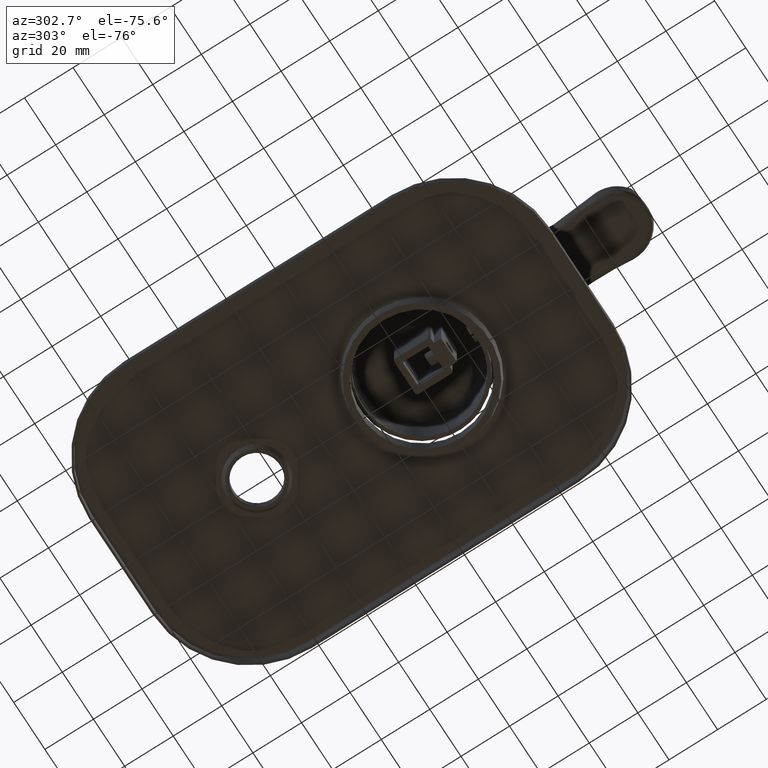
[diagram: clean part render]
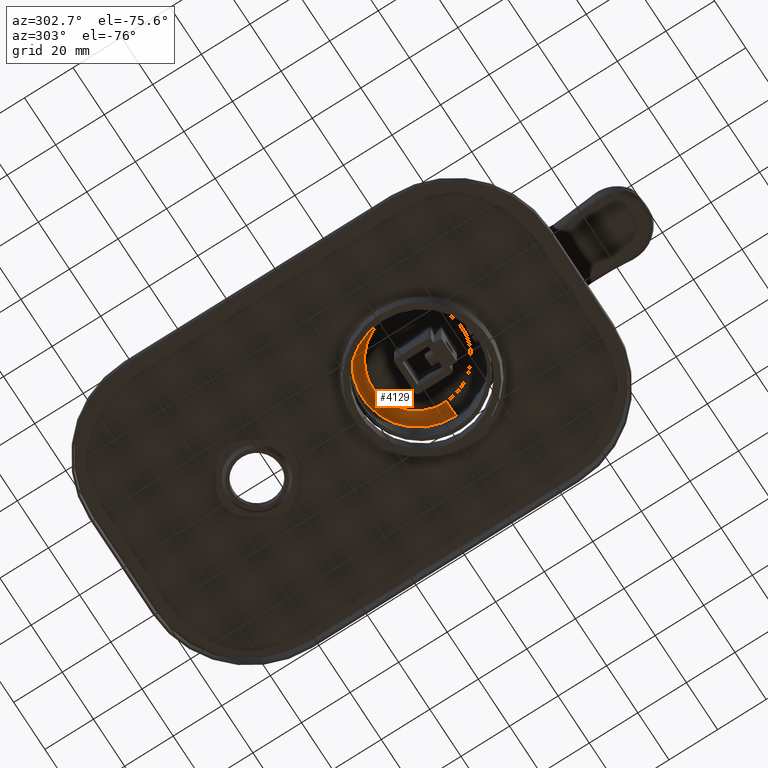
[diagram: same view with one face highlighted and labeled with its STEP entity id]
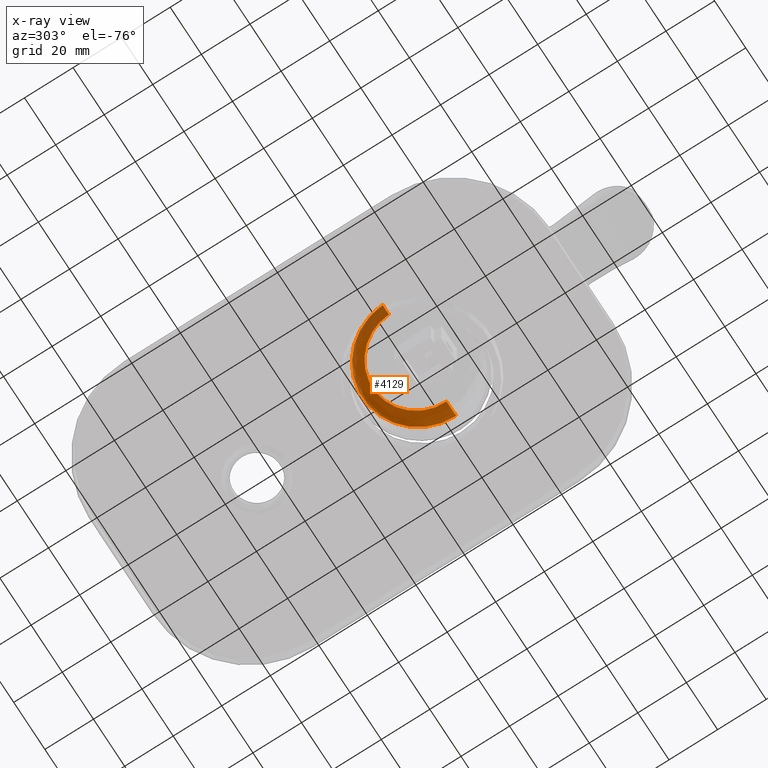
[diagram: x-ray of the same camera — body ghosted, the highlighted face saturated]
A machine part, auxiliary view. The second image highlights one B-rep face of the part: STEP entity #4129.
The next image is the same camera in x-ray: the body ghosted, the highlighted face saturated — about 17% of this face is hidden behind the body in this view.
In plain terms, the highlighted face is a freeform B-spline surface patch.
Its self-contained STEP definition (entity closure, byte-faithful):
#129=CARTESIAN_POINT('',(1.85E1,7.821723252001E-1,2.327340145320E1));
#130=CARTESIAN_POINT('',(1.849998512842E1,1.054533901998E0,2.323026361730E1));
#131=CARTESIAN_POINT('',(1.848790921633E1,1.599405743102E0,2.314396439570E1));
#132=CARTESIAN_POINT('',(1.843353099712E1,2.418149201994E0,2.301428817119E1));
#133=CARTESIAN_POINT('',(1.834275237717E1,3.235359439744E0,2.288485478506E1));
#134=CARTESIAN_POINT('',(1.821550195504E1,4.049064174167E0,2.275597661611E1));
#135=CARTESIAN_POINT('',(1.805191651269E1,4.857074348034E0,2.262800037695E1));
#136=CARTESIAN_POINT('',(1.785241446516E1,5.657396277367E0,2.250124183609E1));
#137=CARTESIAN_POINT('',(1.761746562498E1,6.448032680551E0,2.237601733187E1));
#138=CARTESIAN_POINT('',(1.734762927784E1,7.226956468687E0,2.225264792363E1));
#139=CARTESIAN_POINT('',(1.704360947781E1,7.992529009522E0,2.213139314522E1));
#140=CARTESIAN_POINT('',(1.670607691470E1,8.743417292559E0,2.201246412477E1));
#141=CARTESIAN_POINT('',(1.633569215133E1,9.478218617062E0,2.189608302824E1));
#142=CARTESIAN_POINT('',(1.593307615790E1,1.019555976967E1,2.178246735126E1));
#143=CARTESIAN_POINT('',(1.549916995919E1,1.089402164983E1,2.167184185728E1));
#144=CARTESIAN_POINT('',(1.503496643369E1,1.157217764827E1,2.156443249902E1));
#145=CARTESIAN_POINT('',(1.454145279249E1,1.222861819977E1,2.146046252966E1));
#146=CARTESIAN_POINT('',(1.401966544872E1,1.286198786132E1,2.136014663030E1));
#147=CARTESIAN_POINT('',(1.347075764482E1,1.347118262866E1,2.126365965802E1));
#148=CARTESIAN_POINT('',(1.289585864962E1,1.405508741178E1,2.117117822575E1));
#149=CARTESIAN_POINT('',(1.229606816042E1,1.461257849783E1,2.108288031210E1));
#150=CARTESIAN_POINT('',(1.167257773837E1,1.514262030454E1,2.099892993719E1));
#151=CARTESIAN_POINT('',(1.102672153202E1,1.564429692138E1,2.091947216701E1));
#152=CARTESIAN_POINT('',(1.035980001310E1,1.611668353033E1,2.084465347833E1));
#153=CARTESIAN_POINT('',(9.673093661881E0,1.655883477762E1,2.077462360049E1));
#154=CARTESIAN_POINT('',(8.967980594313E0,1.696999231489E1,2.070950264407E1));
#155=CARTESIAN_POINT('',(8.245878381266E0,1.734948887664E1,2.064939629353E1));
#156=CARTESIAN_POINT('',(7.508181297851E0,1.769663651475E1,2.059441350916E1));
#157=CARTESIAN_POINT('',(6.756266710256E0,1.801073149247E1,2.054466575190E1));
#158=CARTESIAN_POINT('',(5.991613116509E0,1.829130704056E1,2.050022695075E1));
#159=CARTESIAN_POINT('',(5.215700789126E0,1.853791817541E1,2.046116758418E1));
#160=CARTESIAN_POINT('',(4.429994305252E0,1.875009627639E1,2.042756187441E1));
#161=CARTESIAN_POINT('',(3.635957465684E0,1.892739597070E1,2.039948036155E1));
#162=CARTESIAN_POINT('',(2.835112217980E0,1.906962235623E1,2.037695391508E1));
#163=CARTESIAN_POINT('',(2.028968799553E0,1.917655458404E1,2.036001751403E1));
#164=CARTESIAN_POINT('',(1.219030792007E0,1.924793776679E1,2.034871152858E1));
#165=CARTESIAN_POINT('',(4.068065674311E-1,1.928361215151E1,2.034306126112E1));
#166=CARTESIAN_POINT('',(-4.061783835804E-1,1.928362350087E1,2.034305946356E1));
#167=CARTESIAN_POINT('',(-1.218403858631E0,1.924797517771E1,2.034870560327E1));
#168=CARTESIAN_POINT('',(-2.028345086326E0,1.917662825388E1,2.036000584587E1));
#169=CARTESIAN_POINT('',(-2.834491551519E0,1.906971991643E1,2.037693846306E1));
#170=CARTESIAN_POINT('',(-3.635340592494E0,1.892751594317E1,2.039946135978E1));
#171=CARTESIAN_POINT('',(-4.429383797310E0,1.875024466866E1,2.042753837138E1));
#172=CARTESIAN_POINT('',(-5.215098994556E0,1.853809993055E1,2.046113879699E1));
#173=CARTESIAN_POINT('',(-5.991017837568E0,1.829151101088E1,2.050019464503E1));
#174=CARTESIAN_POINT('',(-6.755678849655E0,1.801095716282E1,2.054463000923E1));
#175=CARTESIAN_POINT('',(-7.507606389051E0,1.769689261117E1,2.059437294747E1));
#176=CARTESIAN_POINT('',(-8.245316660417E0,1.734977285857E1,2.064935131521E1));
#177=CARTESIAN_POINT('',(-8.967429481524E0,1.697029673425E1,2.070945442878E1));
#178=CARTESIAN_POINT('',(-9.672554244868E0,1.655915982676E1,2.077457211777E1));
#179=CARTESIAN_POINT('',(-1.035927987252E1,1.611703863421E1,2.084459723540E1));
#180=CARTESIAN_POINT('',(-1.102621635973E1,1.564467515448E1,2.091941226077E1));
#181=CARTESIAN_POINT('',(-1.167208574564E1,1.514301776413E1,2.099886698578E1));
#182=CARTESIAN_POINT('',(-1.229559204469E1,1.461299619368E1,2.108281415557E1));
#183=CARTESIAN_POINT('',(-1.289540750066E1,1.405553189359E1,2.117110782674E1));
#184=CARTESIAN_POINT('',(-1.347032460678E1,1.347164483331E1,2.126358645200E1));
#185=CARTESIAN_POINT('',(-1.401925031274E1,1.286246510123E1,2.136007104292E1));
#186=CARTESIAN_POINT('',(-1.454106081485E1,1.222911179014E1,2.146038435263E1));
#187=CARTESIAN_POINT('',(-1.503460436815E1,1.157268942701E1,2.156435144123E1));
#188=CARTESIAN_POINT('',(-1.549882845328E1,1.089454577045E1,2.167175884473E1));
#189=CARTESIAN_POINT('',(-1.593275328086E1,1.019609856013E1,2.178238201523E1));
#190=CARTESIAN_POINT('',(-1.633539316584E1,9.478781593941E0,2.189599386146E1));
#191=CARTESIAN_POINT('',(-1.670579939021E1,8.744009878532E0,2.201237026837E1));
#192=CARTESIAN_POINT('',(-1.704335082544E1,7.993139412461E0,2.213129646689E1));
#193=CARTESIAN_POINT('',(-1.734739827487E1,7.227564679857E0,2.225255159244E1));
#194=CARTESIAN_POINT('',(-1.761728335979E1,6.448604447792E0,2.237592677284E1));
#195=CARTESIAN_POINT('',(-1.785228146608E1,5.657892963310E0,2.250116316876E1));
#196=CARTESIAN_POINT('',(-1.805182662857E1,4.857473719069E0,2.262793712279E1));
#197=CARTESIAN_POINT('',(-1.821544958887E1,4.049357495437E0,2.275593015858E1));
#198=CARTESIAN_POINT('',(-1.834273605042E1,3.235554063189E0,2.288482395974E1));
#199=CARTESIAN_POINT('',(-1.843352651610E1,2.418249746301E0,2.301427224654E1));
#200=CARTESIAN_POINT('',(-1.848790159546E1,1.599433134664E0,2.314396005731E1));
#201=CARTESIAN_POINT('',(-1.849998309254E1,1.054539284109E0,2.323026276485E1));
#202=CARTESIAN_POINT('',(-1.85E1,7.821723252001E-1,2.327340145320E1));
#311=CARTESIAN_POINT('',(1.849999247674E1,-4.965118292899E-8,1.833495975810E1));
#312=DIRECTION('',(-2.277411351689E-8,9.876883405951E-1,-1.564344650402E-1));
#313=DIRECTION('',(1.504651319095E-6,1.564344650401E-1,9.876883405940E-1));
#314=AXIS2_PLACEMENT_3D('',#311,#312,#313);
#316=CARTESIAN_POINT('',(-1.849999247674E1,4.965118125151E-8,1.833495974237E1));
#317=DIRECTION('',(2.277411361197E-8,-9.876883405951E-1,1.564344650402E-1));
#318=DIRECTION('',(-1.504651319806E-6,1.564344650400E-1,9.876883405940E-1));
#319=AXIS2_PLACEMENT_3D('',#316,#317,#318);
#2653=CARTESIAN_POINT('',(2.349999494126E1,-1.150892519556E-10,
1.833495975025E1));
#2654=CARTESIAN_POINT('',(2.349998723345E1,3.296706615822E-1,1.829385961980E1));
#2655=CARTESIAN_POINT('',(2.348613029275E1,9.890371940261E-1,1.821165723506E1));
#2656=CARTESIAN_POINT('',(2.342369854109E1,1.976504181488E0,1.808851639280E1));
#2657=CARTESIAN_POINT('',(2.331977624050E1,2.960455494599E0,1.796581828949E1));
#2658=CARTESIAN_POINT('',(2.317455763746E1,3.939034014267E0,1.784381654520E1));
#2659=CARTESIAN_POINT('',(2.298834012052E1,4.910416690857E0,1.772270514450E1));
#2660=CARTESIAN_POINT('',(2.276147265262E1,5.872922301312E0,1.760269109495E1));
#2661=CARTESIAN_POINT('',(2.249437655995E1,6.824863760643E0,1.748399304046E1));
#2662=CARTESIAN_POINT('',(2.218753818184E1,7.764586273508E0,1.736683570821E1));
#2663=CARTESIAN_POINT('',(2.184151573942E1,8.690438405771E0,1.725139690951E1));
#2664=CARTESIAN_POINT('',(2.145697294931E1,9.600711400308E0,1.713789078569E1));
#2665=CARTESIAN_POINT('',(2.103465093233E1,1.049373999671E1,1.702653284359E1));
#2666=CARTESIAN_POINT('',(2.057536735936E1,1.136789762952E1,1.691755019792E1));
#2667=CARTESIAN_POINT('',(2.008000674232E1,1.222161522008E1,1.681110831043E1));
#2668=CARTESIAN_POINT('',(1.954947869912E1,1.305343480934E1,1.670738673581E1));
#2669=CARTESIAN_POINT('',(1.898475461247E1,1.386193018154E1,1.660657013343E1));
#2670=CARTESIAN_POINT('',(1.838685483289E1,1.464572781557E1,1.650885334448E1));
#2671=CARTESIAN_POINT('',(1.775685831638E1,1.540349014571E1,1.641437619937E1));
#2672=CARTESIAN_POINT('',(1.709592693870E1,1.613389413172E1,1.632329964465E1));
#2673=CARTESIAN_POINT('',(1.640527404870E1,1.683567524961E1,1.623578741168E1));
#2674=CARTESIAN_POINT('',(1.568616173051E1,1.750762744258E1,1.615201470076E1));
#2675=CARTESIAN_POINT('',(1.493989245064E1,1.814860922513E1,1.607209968982E1));
#2676=CARTESIAN_POINT('',(1.416779894557E1,1.875754779634E1,1.599616918638E1));
#2677=CARTESIAN_POINT('',(1.337125727326E1,1.933342537972E1,1.592435506142E1));
#2678=CARTESIAN_POINT('',(1.255167444036E1,1.987528802250E1,1.585680095289E1));
#2679=CARTESIAN_POINT('',(1.171049100493E1,2.038224136446E1,1.579359856918E1));
#2680=CARTESIAN_POINT('',(1.084919117846E1,2.085344519086E1,1.573484260359E1));
#2681=CARTESIAN_POINT('',(9.969289489096E0,2.128812260600E1,1.568063373799E1));
#2682=CARTESIAN_POINT('',(9.072324128921E0,2.168556244156E1,1.563108475868E1));
#2683=CARTESIAN_POINT('',(8.159847477951E0,2.204512146607E1,1.558626150301E1));
#2684=CARTESIAN_POINT('',(7.233431773173E0,2.236621969730E1,1.554622282904E1));
#2685=CARTESIAN_POINT('',(6.294672012761E0,2.264833924854E1,1.551103577982E1));
#2686=CARTESIAN_POINT('',(5.345174618222E0,2.289102771055E1,1.548077938712E1));
#2687=CARTESIAN_POINT('',(4.386554085718E0,2.309389715070E1,1.545549409976E1));
#2688=CARTESIAN_POINT('',(3.420446212600E0,2.325662081512E1,1.543520387361E1));
#2689=CARTESIAN_POINT('',(2.448499895331E0,2.337893616192E1,1.541994246863E1));
#2690=CARTESIAN_POINT('',(1.472367237750E0,2.346064606791E1,1.540975477986E1));
#2691=CARTESIAN_POINT('',(4.937010068293E-1,2.350161770514E1,1.540465657359E1));
#2692=CARTESIAN_POINT('',(-4.858306750824E-1,2.350178202868E1,
1.540463665399E1));
#2693=CARTESIAN_POINT('',(-1.464555074153E0,2.346113597682E1,1.540969493991E1));
#2694=CARTESIAN_POINT('',(-2.440803181529E0,2.337974250023E1,1.541984084209E1));
#2695=CARTESIAN_POINT('',(-3.412918119584E0,2.325772884511E1,1.543506499236E1));
#2696=CARTESIAN_POINT('',(-4.379241898225E0,2.309528744148E1,1.545532113388E1));
#2697=CARTESIAN_POINT('',(-5.338119011985E0,2.289267710027E1,1.548057509539E1));
#2698=CARTESIAN_POINT('',(-6.287906208918E0,2.265022195039E1,1.551080013223E1));
#2699=CARTESIAN_POINT('',(-7.226979982436E0,2.236830886532E1,1.554596150078E1));
#2700=CARTESIAN_POINT('',(-8.153726447089E0,2.204738998306E1,1.558597883666E1));
#2701=CARTESIAN_POINT('',(-9.066542687370E0,2.168798416486E1,1.563078424060E1));
#2702=CARTESIAN_POINT('',(-9.963847373611E0,2.129067422817E1,1.568031487268E1));
#2703=CARTESIAN_POINT('',(-1.084408366746E1,2.085610554521E1,1.573450998371E1));
#2704=CARTESIAN_POINT('',(-1.170571470421E1,2.038498878798E1,1.579325599577E1));
#2705=CARTESIAN_POINT('',(-1.254722540109E1,1.987810103855E1,1.585645168423E1));
#2706=CARTESIAN_POINT('',(-1.336713087097E1,1.933628271821E1,1.592399826417E1));
#2707=CARTESIAN_POINT('',(-1.416398768788E1,1.876043005490E1,1.599580887711E1));
#2708=CARTESIAN_POINT('',(-1.493638877405E1,1.815149714970E1,1.607173942567E1));
#2709=CARTESIAN_POINT('',(-1.568295705767E1,1.751050255601E1,1.615165769708E1));
#2710=CARTESIAN_POINT('',(-1.640235851910E1,1.683852022076E1,1.623543229315E1));
#2711=CARTESIAN_POINT('',(-1.709328881256E1,1.613669368869E1,1.632294962230E1));
#2712=CARTESIAN_POINT('',(-1.775448668783E1,1.540622844597E1,1.641403442099E1));
#2713=CARTESIAN_POINT('',(-1.838473858864E1,1.464838922318E1,1.650852296632E1));
#2714=CARTESIAN_POINT('',(-1.898288227006E1,1.386449930923E1,1.660624959225E1));
#2715=CARTESIAN_POINT('',(-1.954783646847E1,1.305589939712E1,1.670707858801E1));
#2716=CARTESIAN_POINT('',(-2.007858088618E1,1.222396331364E1,1.681081511587E1));
#2717=CARTESIAN_POINT('',(-2.057414347703E1,1.137011858474E1,1.691727477952E1));
#2718=CARTESIAN_POINT('',(-2.103361407652E1,1.049582455939E1,1.702627269174E1));
#2719=CARTESIAN_POINT('',(-2.145610763614E1,9.602652002016E0,1.713764778191E1));
#2720=CARTESIAN_POINT('',(-2.184080670305E1,8.692227728132E0,1.725117309381E1));
#2721=CARTESIAN_POINT('',(-2.218697005286E1,7.766217829750E0,1.736663353699E1));
#2722=CARTESIAN_POINT('',(-2.249393363072E1,6.826332651438E0,1.748381003493E1));
#2723=CARTESIAN_POINT('',(-2.276113878787E1,5.874226584477E0,1.760252803797E1));
#2724=CARTESIAN_POINT('',(-2.298810069503E1,4.911550150356E0,1.772256349985E1));
#2725=CARTESIAN_POINT('',(-2.317439811677E1,3.939988450947E0,1.784369934372E1));
#2726=CARTESIAN_POINT('',(-2.331968239711E1,2.961218395264E0,1.796572271527E1));
#2727=CARTESIAN_POINT('',(-2.342365602360E1,1.977045908337E0,1.808844708317E1));
#2728=CARTESIAN_POINT('',(-2.348612241668E1,9.893279461494E-1,
1.821162057151E1));
#2729=CARTESIAN_POINT('',(-2.349998594639E1,3.297709482061E-1,
1.829384614224E1));
#2730=CARTESIAN_POINT('',(-2.349999494126E1,1.150877868158E-10,
1.833495975022E1));
#3637=VERTEX_POINT('',#129);
#3638=VERTEX_POINT('',#202);
#3639=VERTEX_POINT('',#2653);
#3640=VERTEX_POINT('',#2730);
#4023=CARTESIAN_POINT('',(1.833399407256E1,2.089552557197E-1,2.336169212890E1));
#4024=CARTESIAN_POINT('',(1.833815784583E1,3.419416935383E-1,2.334062914638E1));
#4025=CARTESIAN_POINT('',(1.836167403318E1,1.497025714420E0,2.315768181020E1));
#4026=CARTESIAN_POINT('',(1.819974191630E1,3.678251816258E0,2.281220953484E1));
#4027=CARTESIAN_POINT('',(1.746405691682E1,6.665927356045E0,2.233900821660E1));
#4028=CARTESIAN_POINT('',(1.624282307461E1,9.487600376742E0,2.189209911444E1));
#4029=CARTESIAN_POINT('',(1.457164118054E1,1.206405038824E1,2.148402952134E1));
#4030=CARTESIAN_POINT('',(1.249890861083E1,1.432441485148E1,2.112602296090E1));
#4031=CARTESIAN_POINT('',(1.008356063381E1,1.620741485770E1,2.082778505879E1));
#4032=CARTESIAN_POINT('',(7.393374674670E0,1.766279520188E1,2.059727545751E1));
#4033=CARTESIAN_POINT('',(4.502606821791E0,1.865239740629E1,2.044053786622E1));
#4034=CARTESIAN_POINT('',(1.490128871989E0,1.915058356445E1,2.036163293039E1));
#4035=CARTESIAN_POINT('',(-1.562615410830E0,1.914455893079E1,2.036258713862E1));
#4036=CARTESIAN_POINT('',(-4.573136158227E0,1.863447804163E1,2.044337601477E1));
#4037=CARTESIAN_POINT('',(-7.460031923340E0,1.763344271515E1,2.060192443470E1));
#4038=CARTESIAN_POINT('',(-1.014451731462E1,1.616739378563E1,2.083412377389E1));
#4039=CARTESIAN_POINT('',(-1.255246909886E1,1.427478290173E1,2.113388388949E1));
#4040=CARTESIAN_POINT('',(-1.461629205176E1,1.200614161852E1,2.149320136942E1));
#4041=CARTESIAN_POINT('',(-1.627728220587E1,9.422997451901E0,2.190233121253E1));
#4042=CARTESIAN_POINT('',(-1.748731990570E1,6.596423243282E0,2.235001658660E1));
#4043=CARTESIAN_POINT('',(-1.821112425412E1,3.605799367667E0,2.282368487536E1));
#4044=CARTESIAN_POINT('',(-1.836265499522E1,1.448420298682E0,2.316538015177E1));
#4045=CARTESIAN_POINT('',(-1.833740201393E1,3.177961060387E-1,
2.334445343174E1));
#4046=CARTESIAN_POINT('',(-1.833400695790E1,2.092276460920E-1,
2.336164898650E1));
#4047=CARTESIAN_POINT('',(2.140800276456E1,1.303996501380E-1,2.347199030416E1));
#4048=CARTESIAN_POINT('',(2.141284840203E1,2.851339360295E-1,2.344748280089E1));
#4049=CARTESIAN_POINT('',(2.144021838027E1,1.629109114536E0,2.323461804443E1));
#4050=CARTESIAN_POINT('',(2.125181071196E1,4.167007716951E0,2.283265439469E1));
#4051=CARTESIAN_POINT('',(2.039565746273E1,7.644187231573E0,2.228192326336E1));
#4052=CARTESIAN_POINT('',(1.897367043358E1,1.092994355393E1,2.176151058720E1));
#4053=CARTESIAN_POINT('',(1.702631443423E1,1.393239368756E1,2.128596920318E1));
#4054=CARTESIAN_POINT('',(1.460892861201E1,1.656880854677E1,2.086840211124E1));
#4055=CARTESIAN_POINT('',(1.178939038750E1,1.876708055784E1,2.052023002909E1));
#4056=CARTESIAN_POINT('',(8.646370684659E0,2.046757156108E1,2.025089871326E1));
#4057=CARTESIAN_POINT('',(5.266701502459E0,2.162462875984E1,2.006763885641E1));
#4058=CARTESIAN_POINT('',(1.743181054801E0,2.220737286287E1,1.997534125780E1));
#4059=CARTESIAN_POINT('',(-1.827974912944E0,2.220032459531E1,1.997645759372E1));
#4060=CARTESIAN_POINT('',(-5.349180512866E0,2.160367119326E1,2.007095820887E1));
#4061=CARTESIAN_POINT('',(-8.724276481642E0,2.043326227354E1,2.025633277057E1));
#4062=CARTESIAN_POINT('',(-1.186057785640E1,1.872033771654E1,2.052763336785E1));
#4063=CARTESIAN_POINT('',(-1.467142232828E1,1.651089275348E1,2.087757507175E1));
#4064=CARTESIAN_POINT('',(-1.707836490073E1,1.386488143983E1,2.129666209275E1));
#4065=CARTESIAN_POINT('',(-1.901380684271E1,1.085468954714E1,2.177342965095E1));
#4066=CARTESIAN_POINT('',(-2.042273532846E1,7.563277176386E0,2.229473815717E1));
#4067=CARTESIAN_POINT('',(-2.126505414281E1,4.082700489948E0,2.284600734765E1));
#4068=CARTESIAN_POINT('',(-2.144135982938E1,1.572556006269E0,2.324357517683E1));
#4069=CARTESIAN_POINT('',(-2.141196931328E1,2.570397547822E-1,
2.345193248206E1));
#4070=CARTESIAN_POINT('',(-2.140801828034E1,1.307166256808E-1,
2.347194010017E1));
#4071=CARTESIAN_POINT('',(2.358272851536E1,-2.762357241045E-1,
2.133351110467E1));
#4072=CARTESIAN_POINT('',(2.358805654171E1,-1.061157936144E-1,
2.130656675469E1));
#4073=CARTESIAN_POINT('',(2.361815290726E1,1.371491558949E0,2.107253674114E1));
#4074=CARTESIAN_POINT('',(2.341101495246E1,4.161720245408E0,2.063060793226E1));
#4075=CARTESIAN_POINT('',(2.246963572272E1,7.985202261371E0,2.002502787307E1));
#4076=CARTESIAN_POINT('',(2.090562465625E1,1.159927707849E1,1.945261465587E1));
#4077=CARTESIAN_POINT('',(1.876288764186E1,1.490310353478E1,1.892933995166E1));
#4078=CARTESIAN_POINT('',(1.610167482420E1,1.780555748550E1,1.846963640710E1));
#4079=CARTESIAN_POINT('',(1.299618980269E1,2.022687055343E1,1.808613809199E1));
#4080=CARTESIAN_POINT('',(9.532810171850E0,2.210076655172E1,1.778934212307E1));
#4081=CARTESIAN_POINT('',(5.807264833466E0,2.337629078322E1,1.758731893155E1));
#4082=CARTESIAN_POINT('',(1.922204328120E0,2.401885590777E1,1.748554661392E1));
#4083=CARTESIAN_POINT('',(-2.015705072577E0,2.401108346431E1,1.748677764803E1));
#4084=CARTESIAN_POINT('',(-5.898197711867E0,2.335318382259E1,1.759097871457E1));
#4085=CARTESIAN_POINT('',(-9.618673821307E0,2.206295054594E1,1.779533158998E1));
#4086=CARTESIAN_POINT('',(-1.307461510355E1,2.017537235646E1,1.809429460509E1));
#4087=CARTESIAN_POINT('',(-1.617048840598E1,1.774178123778E1,1.847973757241E1));
#4088=CARTESIAN_POINT('',(-1.882017299610E1,1.482879724936E1,1.894110891109E1));
#4089=CARTESIAN_POINT('',(-2.094977748940E1,1.151648790036E1,1.946572717351E1));
#4090=CARTESIAN_POINT('',(-2.249941244578E1,7.896223004310E0,2.003912080290E1));
#4091=CARTESIAN_POINT('',(-2.342557502465E1,4.069026284837E0,2.064528921332E1));
#4092=CARTESIAN_POINT('',(-2.361940789389E1,1.309315808284E0,2.108238441261E1));
#4093=CARTESIAN_POINT('',(-2.358709025416E1,-1.370034310170E-1,
2.131145887586E1));
#4094=CARTESIAN_POINT('',(-2.358274589205E1,-2.758872065175E-1,
2.133345590491E1));
#4095=CARTESIAN_POINT('',(2.348612388568E1,-7.544021855300E-1,
1.829543380442E1));
#4096=CARTESIAN_POINT('',(2.349143048359E1,-5.849657088033E-1,
1.826859770288E1));
#4097=CARTESIAN_POINT('',(2.352140573885E1,8.867054990839E-1,1.803550788228E1));
#4098=CARTESIAN_POINT('',(2.331509981190E1,3.665725298943E0,1.759535438663E1));
#4099=CARTESIAN_POINT('',(2.237750645001E1,7.473824030422E0,1.699221080034E1));
#4100=CARTESIAN_POINT('',(2.081980430756E1,1.107331444002E1,1.642210752636E1));
#4101=CARTESIAN_POINT('',(1.868574641540E1,1.436375330110E1,1.590095320893E1));
#4102=CARTESIAN_POINT('',(1.603536476419E1,1.725438939023E1,1.544312142977E1));
#4103=CARTESIAN_POINT('',(1.294258193487E1,1.966579463475E1,1.506119235972E1));
#4104=CARTESIAN_POINT('',(9.493433179894E0,2.153198771909E1,1.476561641252E1));
#4105=CARTESIAN_POINT('',(5.783252187093E0,2.280224946458E1,1.456442671689E1));
#4106=CARTESIAN_POINT('',(1.914251841689E0,2.344215724826E1,1.446307528072E1));
#4107=CARTESIAN_POINT('',(-2.007365812997E0,2.343441697379E1,1.446430121976E1));
#4108=CARTESIAN_POINT('',(-5.873809531804E0,2.277923798331E1,1.456807137748E1));
#4109=CARTESIAN_POINT('',(-9.578943329426E0,2.149432748707E1,1.477158120729E1));
#4110=CARTESIAN_POINT('',(-1.302068572020E1,1.961450767792E1,1.506931541567E1));
#4111=CARTESIAN_POINT('',(-1.610389760792E1,1.719087347281E1,1.545318136280E1));
#4112=CARTESIAN_POINT('',(-1.874279922796E1,1.428974881717E1,1.591267436770E1));
#4113=CARTESIAN_POINT('',(-2.086377872504E1,1.099085998568E1,1.643516702897E1));
#4114=CARTESIAN_POINT('',(-2.240716328572E1,7.385203219596E0,1.700624695786E1));
#4115=CARTESIAN_POINT('',(-2.332960139688E1,3.573403889849E0,1.760997666134E1));
#4116=CARTESIAN_POINT('',(-2.352265568197E1,8.247795147563E-1,
1.804531599465E1));
#4117=CARTESIAN_POINT('',(-2.349046806953E1,-6.157292566295E-1,
1.827347017018E1));
#4118=CARTESIAN_POINT('',(-2.348614117971E1,-7.540550690887E-1,
1.829537882657E1));
#4119=(BOUNDED_SURFACE()B_SPLINE_SURFACE(3,3,((#4023,#4024,#4025,#4026,#4027,
#4028,#4029,#4030,#4031,#4032,#4033,#4034,#4035,#4036,#4037,#4038,#4039,#4040,
#4041,#4042,#4043,#4044,#4045,#4046),(#4047,#4048,#4049,#4050,#4051,#4052,#4053,
#4054,#4055,#4056,#4057,#4058,#4059,#4060,#4061,#4062,#4063,#4064,#4065,#4066,
#4067,#4068,#4069,#4070),(#4071,#4072,#4073,#4074,#4075,#4076,#4077,#4078,#4079,
#4080,#4081,#4082,#4083,#4084,#4085,#4086,#4087,#4088,#4089,#4090,#4091,#4092,
#4093,#4094),(#4095,#4096,#4097,#4098,#4099,#4100,#4101,#4102,#4103,#4104,#4105,
#4106,#4107,#4108,#4109,#4110,#4111,#4112,#4113,#4114,#4115,#4116,#4117,#4118)),
.UNSPECIFIED.,.F.,.F.,.F.)B_SPLINE_SURFACE_WITH_KNOTS((4,4),(4,1,1,1,1,1,1,1,1,
1,1,1,1,1,1,1,1,1,1,1,1,4),(0.E0,1.E0),(-6.918801461165E-3,0.E0,
5.314274999903E-2,1.062148071150E-1,1.591922928118E-1,2.120239576319E-1,
2.646960640224E-1,3.172014929025E-1,3.695529352009E-1,4.217786692298E-1,
4.739277532921E-1,5.260481823118E-1,5.781985689862E-1,6.304267700312E-1,
6.827815763087E-1,7.352909053600E-1,7.879670220633E-1,8.408023676019E-1,
8.937827908406E-1,9.468567115421E-1,1.E0,1.005647971531E0),.UNSPECIFIED.)GEOMETRIC_REPRESENTATION_ITEM()RATIONAL_B_SPLINE_SURFACE(((1.187262793335E0,
1.187262793335E0,1.187262793335E0,1.187262793335E0,1.187262793335E0,
1.187262793335E0,1.187262793335E0,1.187262793335E0,1.187262793335E0,
1.187262793335E0,1.187262793335E0,1.187262793335E0,1.187262793335E0,
1.187262793335E0,1.187262793335E0,1.187262793335E0,1.187262793335E0,
1.187262793335E0,1.187262793335E0,1.187262793335E0,1.187262793335E0,
1.187262793335E0,1.187262793335E0,1.187262793335E0),(9.375790688883E-1,
9.375790688883E-1,9.375790688883E-1,9.375790688883E-1,9.375790688883E-1,
9.375790688883E-1,9.375790688883E-1,9.375790688883E-1,9.375790688883E-1,
9.375790688883E-1,9.375790688883E-1,9.375790688883E-1,9.375790688883E-1,
9.375790688883E-1,9.375790688883E-1,9.375790688883E-1,9.375790688883E-1,
9.375790688883E-1,9.375790688883E-1,9.375790688883E-1,9.375790688883E-1,
9.375790688883E-1,9.375790688883E-1,9.375790688883E-1),(9.375790688883E-1,
9.375790688883E-1,9.375790688883E-1,9.375790688883E-1,9.375790688883E-1,
9.375790688883E-1,9.375790688883E-1,9.375790688883E-1,9.375790688883E-1,
9.375790688883E-1,9.375790688883E-1,9.375790688883E-1,9.375790688883E-1,
9.375790688883E-1,9.375790688883E-1,9.375790688883E-1,9.375790688883E-1,
9.375790688883E-1,9.375790688883E-1,9.375790688883E-1,9.375790688883E-1,
9.375790688883E-1,9.375790688883E-1,9.375790688883E-1),(1.187262793335E0,
1.187262793335E0,1.187262793335E0,1.187262793335E0,1.187262793335E0,
1.187262793335E0,1.187262793335E0,1.187262793335E0,1.187262793335E0,
1.187262793335E0,1.187262793335E0,1.187262793335E0,1.187262793335E0,
1.187262793335E0,1.187262793335E0,1.187262793335E0,1.187262793335E0,
1.187262793335E0,1.187262793335E0,1.187262793335E0,1.187262793335E0,
1.187262793335E0,1.187262793335E0,1.187262793335E0)))REPRESENTATION_ITEM('')SURFACE());
#4120=ORIENTED_EDGE('',*,*,#3984,.F.);
#4122=ORIENTED_EDGE('',*,*,#4121,.T.);
#4124=ORIENTED_EDGE('',*,*,#4123,.T.);
#4126=ORIENTED_EDGE('',*,*,#4125,.F.);
#4127=EDGE_LOOP('',(#4120,#4122,#4124,#4126));
#4128=FACE_OUTER_BOUND('',#4127,.F.);
#4129=ADVANCED_FACE('',(#4128),#4119,.F.);
#203=B_SPLINE_CURVE_WITH_KNOTS('',3,(#129,#130,#131,#132,#133,#134,#135,#136,
#137,#138,#139,#140,#141,#142,#143,#144,#145,#146,#147,#148,#149,#150,#151,#152,
#153,#154,#155,#156,#157,#158,#159,#160,#161,#162,#163,#164,#165,#166,#167,#168,
#169,#170,#171,#172,#173,#174,#175,#176,#177,#178,#179,#180,#181,#182,#183,#184,
#185,#186,#187,#188,#189,#190,#191,#192,#193,#194,#195,#196,#197,#198,#199,#200,
#201,#202),.UNSPECIFIED.,.F.,.F.,(4,1,1,1,1,1,1,1,1,1,1,1,1,1,1,1,1,1,1,1,1,1,1,
1,1,1,1,1,1,1,1,1,1,1,1,1,1,1,1,1,1,1,1,1,1,1,1,1,1,1,1,1,1,1,1,1,1,1,1,1,1,1,1,
1,1,1,1,1,1,1,1,4),(0.E0,1.408450704225E-2,2.816901408451E-2,4.225352112676E-2,
5.633802816901E-2,7.042253521127E-2,8.450704225352E-2,9.859154929577E-2,
1.126760563380E-1,1.267605633803E-1,1.408450704225E-1,1.549295774648E-1,
1.690140845070E-1,1.830985915493E-1,1.971830985915E-1,2.112676056338E-1,
2.253521126761E-1,2.394366197183E-1,2.535211267606E-1,2.676056338028E-1,
2.816901408451E-1,2.957746478873E-1,3.098591549296E-1,3.239436619718E-1,
3.380281690141E-1,3.521126760563E-1,3.661971830986E-1,3.802816901408E-1,
3.943661971831E-1,4.084507042254E-1,4.225352112676E-1,4.366197183099E-1,
4.507042253521E-1,4.647887323944E-1,4.788732394366E-1,4.929577464789E-1,
5.070422535211E-1,5.211267605634E-1,5.352112676056E-1,5.492957746479E-1,
5.633802816901E-1,5.774647887324E-1,5.915492957746E-1,6.056338028169E-1,
6.197183098592E-1,6.338028169014E-1,6.478873239437E-1,6.619718309859E-1,
6.760563380282E-1,6.901408450704E-1,7.042253521127E-1,7.183098591549E-1,
7.323943661972E-1,7.464788732394E-1,7.605633802817E-1,7.746478873239E-1,
7.887323943662E-1,8.028169014085E-1,8.169014084507E-1,8.309859154930E-1,
8.450704225352E-1,8.591549295775E-1,8.732394366197E-1,8.873239436620E-1,
9.014084507042E-1,9.154929577465E-1,9.295774647887E-1,9.436619718310E-1,
9.577464788732E-1,9.718309859155E-1,9.859154929577E-1,1.E0),.UNSPECIFIED.);
#315=CIRCLE('',#314,5.E0);
#320=CIRCLE('',#319,5.E0);
#2731=B_SPLINE_CURVE_WITH_KNOTS('',3,(#2653,#2654,#2655,#2656,#2657,#2658,#2659,
#2660,#2661,#2662,#2663,#2664,#2665,#2666,#2667,#2668,#2669,#2670,#2671,#2672,
#2673,#2674,#2675,#2676,#2677,#2678,#2679,#2680,#2681,#2682,#2683,#2684,#2685,
#2686,#2687,#2688,#2689,#2690,#2691,#2692,#2693,#2694,#2695,#2696,#2697,#2698,
#2699,#2700,#2701,#2702,#2703,#2704,#2705,#2706,#2707,#2708,#2709,#2710,#2711,
#2712,#2713,#2714,#2715,#2716,#2717,#2718,#2719,#2720,#2721,#2722,#2723,#2724,
#2725,#2726,#2727,#2728,#2729,#2730),.UNSPECIFIED.,.F.,.F.,(4,1,1,1,1,1,1,1,1,1,
1,1,1,1,1,1,1,1,1,1,1,1,1,1,1,1,1,1,1,1,1,1,1,1,1,1,1,1,1,1,1,1,1,1,1,1,1,1,1,1,
1,1,1,1,1,1,1,1,1,1,1,1,1,1,1,1,1,1,1,1,1,1,1,1,1,4),(0.E0,1.333333333333E-2,
2.666666666667E-2,4.E-2,5.333333333333E-2,6.666666666667E-2,8.E-2,
9.333333333333E-2,1.066666666667E-1,1.2E-1,1.333333333333E-1,1.466666666667E-1,
1.6E-1,1.733333333333E-1,1.866666666667E-1,2.E-1,2.133333333333E-1,
2.266666666667E-1,2.4E-1,2.533333333333E-1,2.666666666667E-1,2.8E-1,
2.933333333333E-1,3.066666666667E-1,3.2E-1,3.333333333333E-1,3.466666666667E-1,
3.6E-1,3.733333333333E-1,3.866666666667E-1,4.E-1,4.133333333333E-1,
4.266666666667E-1,4.4E-1,4.533333333333E-1,4.666666666667E-1,4.8E-1,
4.933333333333E-1,5.066666666667E-1,5.2E-1,5.333333333333E-1,5.466666666667E-1,
5.6E-1,5.733333333333E-1,5.866666666667E-1,6.E-1,6.133333333333E-1,
6.266666666667E-1,6.4E-1,6.533333333333E-1,6.666666666667E-1,6.8E-1,
6.933333333333E-1,7.066666666667E-1,7.2E-1,7.333333333333E-1,7.466666666667E-1,
7.6E-1,7.733333333333E-1,7.866666666667E-1,8.E-1,8.133333333333E-1,
8.266666666667E-1,8.4E-1,8.533333333333E-1,8.666666666667E-1,8.8E-1,
8.933333333333E-1,9.066666666667E-1,9.2E-1,9.333333333333E-1,9.466666666667E-1,
9.6E-1,9.733333333333E-1,9.866666666667E-1,1.E0),.UNSPECIFIED.);
#3984=EDGE_CURVE('',#3637,#3638,#203,.T.);
#4121=EDGE_CURVE('',#3637,#3639,#315,.T.);
#4123=EDGE_CURVE('',#3639,#3640,#2731,.T.);
#4125=EDGE_CURVE('',#3638,#3640,#320,.T.);